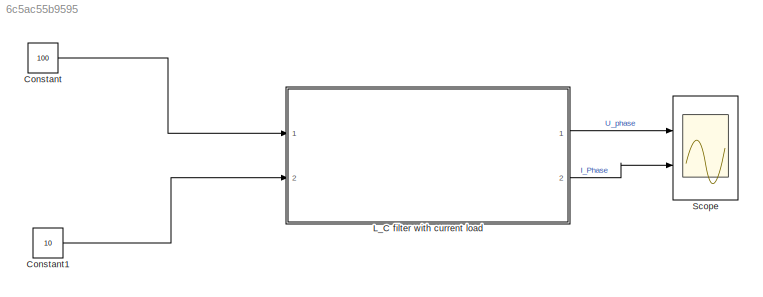
MODEL slx_6c5ac55b9595
KIND model
CONFIG AbsTol = auto
CONFIG EnableMultiTasking = off
CONFIG FixedStep = auto
CONFIG MaxStep = auto
CONFIG MinStep = auto
CONFIG RelTol = 1e-3
CONFIG SampleTimeConstraint = Unconstrained
CONFIG Solver = VariableStepAuto
CONFIG SolverName = VariableStepAuto
CONFIG StartTime = 0.0
CONFIG StopTime = 0.5
BLOCK [Constant] Constant
  Value = 100
BLOCK [Constant] Constant1
  Value = 10
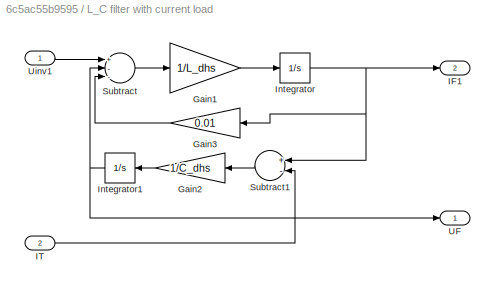
BLOCK [SubSystem] L_C filter with current load
  Ports = [2, 2]
  RequestExecContextInheritance = off
BLOCK [Gain] L_C filter with current load/Gain1
  Gain = 1/L_dhs
  OutDataTypeStr = Inherit: Inherit via internal rule
  ParamDataTypeStr = Inherit: Inherit via internal rule
  SaturateOnIntegerOverflow = off
BLOCK [Gain] L_C filter with current load/Gain2
  Gain = 1/C_dhs
  OutDataTypeStr = Inherit: Inherit via internal rule
  ParamDataTypeStr = Inherit: Inherit via internal rule
  SaturateOnIntegerOverflow = off
BLOCK [Gain] L_C filter with current load/Gain3
  Gain = 0.01
  OutDataTypeStr = Inherit: Inherit via internal rule
  ParamDataTypeStr = Inherit: Inherit via internal rule
  SaturateOnIntegerOverflow = off
BLOCK [Outport] L_C filter with current load/IF1
  IconDisplay = Port number
  Port = 2
BLOCK [Inport] L_C filter with current load/IT
  IconDisplay = Port number
  Port = 2
BLOCK [Integrator] L_C filter with current load/Integrator
  Ports = [1, 1]
BLOCK [Integrator] L_C filter with current load/Integrator1
  Ports = [1, 1]
BLOCK [Sum] L_C filter with current load/Subtract
  InputSameDT = off
  Inputs = +--
  OutDataTypeStr = Inherit: Inherit via internal rule
  Ports = [3, 1]
  SaturateOnIntegerOverflow = off
BLOCK [Sum] L_C filter with current load/Subtract1
  InputSameDT = off
  Inputs = +-
  OutDataTypeStr = Inherit: Inherit via internal rule
  Ports = [2, 1]
  SaturateOnIntegerOverflow = off
BLOCK [Outport] L_C filter with current load/UF
  IconDisplay = Port number
BLOCK [Inport] L_C filter with current load/Uinv1
  IconDisplay = Port number
BLOCK [Scope] Scope
  Floating = off
  NumInputPorts = 2
  Ports = [2]
  ScopeSpecificationString = Simulink.scopes.TimeScopeBlockCfg('CurrentConfiguration', extmgr.ConfigurationSet(extmgr.Configuration('Core','General UI',true),extmgr.Configuration('Core','Source UI',true),extmgr.Configuration('Sources','WiredSimulink',true),extmgr.Configuration('Visuals','Time Domain',true,'SerializedDisplays',{struct('MinYLimReal','-97.01779','MaxYLimReal','232.14831','YLabelReal','','MinYLimMag','0.00000','M...<+1445ch>
LINE Constant1:1 -> L_C filter with current load:2
LINE Constant:1 -> L_C filter with current load:1
LINE L_C filter with current load/Gain1:1 -> L_C filter with current load/Integrator:1
LINE L_C filter with current load/Gain2:1 -> L_C filter with current load/Integrator1:1
LINE L_C filter with current load/Gain3:1 -> L_C filter with current load/Subtract:3
LINE L_C filter with current load/IT:1 -> L_C filter with current load/Subtract1:2
NET L_C filter with current load/Integrator1:1 -> L_C filter with current load/Subtract:2, L_C filter with current load/UF:1
NET L_C filter with current load/Integrator:1 -> L_C filter with current load/Gain3:1, L_C filter with current load/IF1:1, L_C filter with current load/Subtract1:1
LINE L_C filter with current load/Subtract1:1 -> L_C filter with current load/Gain2:1
LINE L_C filter with current load/Subtract:1 -> L_C filter with current load/Gain1:1
LINE L_C filter with current load/Uinv1:1 -> L_C filter with current load/Subtract:1
LINE L_C filter with current load:1 -> Scope:1
LINE L_C filter with current load:2 -> Scope:2
note: NET lines group one-source signal fan-out (src -> all destinations, sorted); 1:1 wires keep LINE
